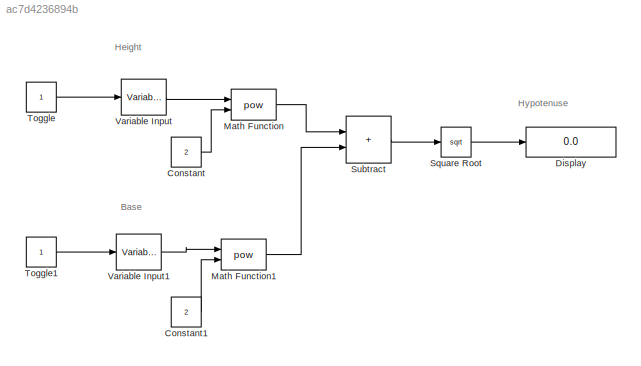
MODEL slx_ac7d4236894b
KIND model
CONFIG AbsTol = auto
CONFIG EnableMultiTasking = off
CONFIG FixedStep = auto
CONFIG MaxStep = auto
CONFIG MinStep = auto
CONFIG RelTol = 1e-3
CONFIG SampleTimeConstraint = Unconstrained
CONFIG SolverName = VariableStepAuto
CONFIG StartTime = 0.0
CONFIG StopTime = 10.0
BLOCK [Constant] Constant
  Value = 2
BLOCK [Constant] Constant1
  Value = 2
BLOCK [Display] Display
  Decimation = 1
  Ports = [1]
BLOCK [Math] Math Function
  Operator = pow
  Ports = [2, 1]
  SignedPower = on
BLOCK [Math] Math Function1
  Operator = pow
  Ports = [2, 1]
  SignedPower = on
BLOCK [Sqrt] Square Root
BLOCK [Sum] Subtract
  IconShape = rectangular
  Ports = [2, 1]
BLOCK [Constant] Toggle
  OpenFcn = if strcmp('0',get_param(gcb, 'Value'))                        set_param(gcb, 'Value', '1');\nelse                                                                                       \n            set_param(gcb, 'Value', '0');                                                  \nend
BLOCK [Constant] Toggle1
  OpenFcn = if strcmp('0',get_param(gcb, 'Value'))                        set_param(gcb, 'Value', '1');\nelse                                                                                       \n            set_param(gcb, 'Value', '0');                                                  \nend
BLOCK [Reference] Variable Input  REF=vexarmcortexlib/Utilities/Variable Input
  Ports = [1, 1]
  SourceBlock = vexarmcortexlib/Utilities/Variable Input
  SourceProductBaseCode = EC_VEX_MICRO
  SourceType = Slider Gain
BLOCK [Reference] Variable Input1  REF=vexarmcortexlib/Utilities/Variable Input
  Ports = [1, 1]
  SourceBlock = vexarmcortexlib/Utilities/Variable Input
  SourceProductBaseCode = EC_VEX_MICRO
  SourceType = Slider Gain
ANNOTATION (root): Base
ANNOTATION (root): Height
ANNOTATION (root): Hypotenuse
LINE Constant1:1 -> Math Function1:2
LINE Constant:1 -> Math Function:2
LINE Math Function1:1 -> Subtract:2
LINE Math Function:1 -> Subtract:1
LINE Square Root:1 -> Display:1
LINE Subtract:1 -> Square Root:1
LINE Toggle1:1 -> Variable Input1:1
LINE Toggle:1 -> Variable Input:1
LINE Variable Input1:1 -> Math Function1:1
LINE Variable Input:1 -> Math Function:1
